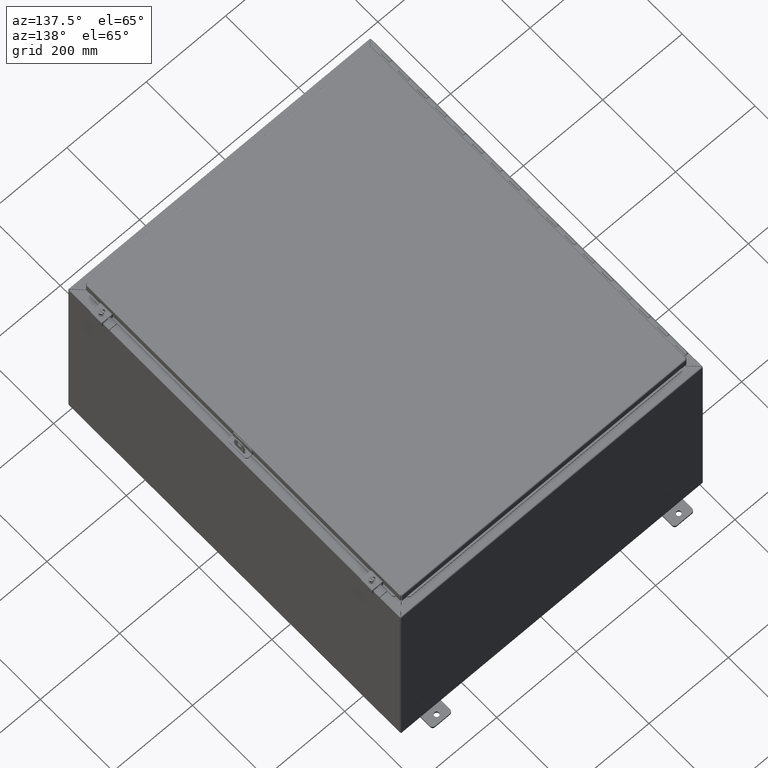
[diagram: clean part render]
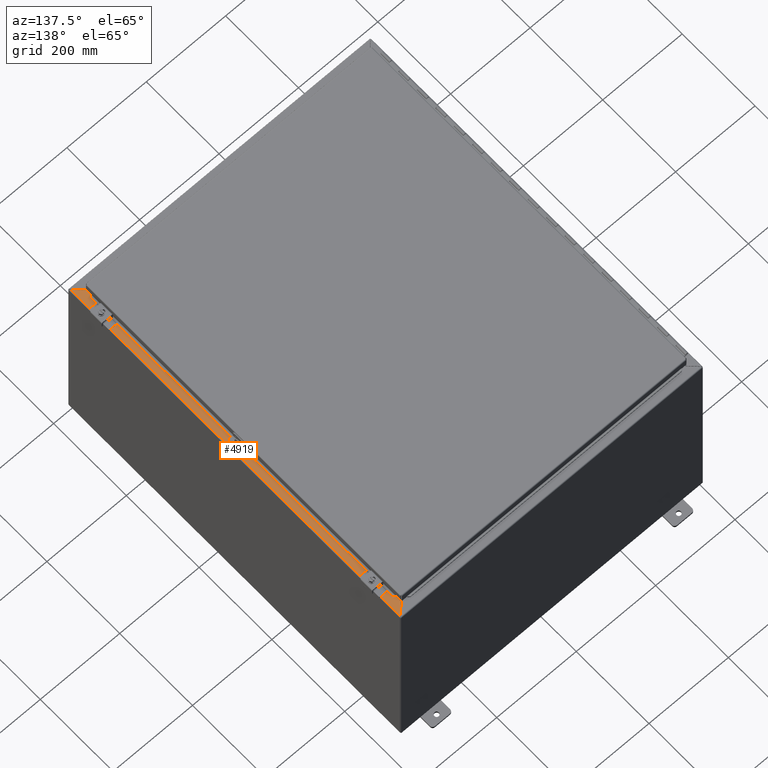
[diagram: same view with one face highlighted and labeled with its STEP entity id]
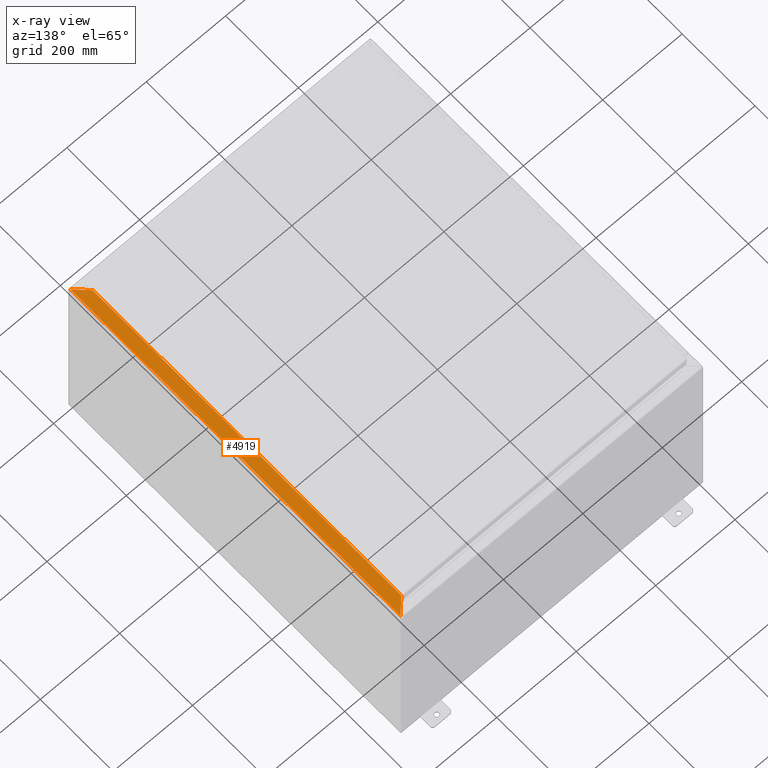
[diagram: x-ray of the same camera — body ghosted, the highlighted face saturated]
A machine part, auxiliary view. The second image highlights one B-rep face of the part: STEP entity #4919.
The next image is the same camera in x-ray: the body ghosted, the highlighted face saturated — about 0% of this face is hidden behind the body in this view.
In plain terms, the highlighted planar face has unit normal (0, -0, -1).
Its self-contained STEP definition (entity closure, byte-faithful):
#3413=CARTESIAN_POINT('',(29.894749999996684,35.793550090805233,20.0));
#3414=VERTEX_POINT('',#3413);
#3515=CARTESIAN_POINT('',(29.894749999996691,0.058449909194797,20.000000000000007));
#3516=VERTEX_POINT('',#3515);
#3567=CARTESIAN_POINT('',(28.73024999999669,34.629050090805237,19.999999999999687));
#3568=VERTEX_POINT('',#3567);
#3667=CARTESIAN_POINT('',(28.730249999996701,1.222949909194795,19.999999999999691));
#3668=VERTEX_POINT('',#3667);
#3711=CARTESIAN_POINT('',(29.894749999996677,35.79355009080524,19.999999999999986));
#3712=DIRECTION('',(-0.707106781186544,-0.707106781186551,-2.588731E-013));
#3713=VECTOR('',#3712,1.646851693383467);
#3714=LINE('',#3711,#3713);
#3715=EDGE_CURVE('',#3414,#3568,#3714,.T.);
#3727=CARTESIAN_POINT('',(28.730249999996694,1.22294990919479,19.999999999999577));
#3728=DIRECTION('',(0.707106781186546,-0.707106781186549,2.588731E-013));
#3729=VECTOR('',#3728,1.646851693383462);
#3730=LINE('',#3727,#3729);
#3731=EDGE_CURVE('',#3668,#3516,#3730,.T.);
#4789=CARTESIAN_POINT('',(28.730249999996698,34.629050090805237,19.99999999999968));
#4790=DIRECTION('',(0.0,-1.0,0.0));
#4791=VECTOR('',#4790,33.406100181610441);
#4792=LINE('',#4789,#4791);
#4793=EDGE_CURVE('',#3568,#3668,#4792,.T.);
#4865=CARTESIAN_POINT('',(29.894749999996694,0.058449909194799,20.000000000000007));
#4866=DIRECTION('',(0.0,1.0,0.0));
#4867=VECTOR('',#4866,35.735100181610441);
#4868=LINE('',#4865,#4867);
#4869=EDGE_CURVE('',#3516,#3414,#4868,.T.);
#4908=CARTESIAN_POINT('',(64.724367775263602,17.92600000000002,20.000000000012768));
#4909=DIRECTION('',(3.667201E-013,-4.706583E-016,-1.0));
#4910=DIRECTION('',(-1.0,-6.789990E-016,-3.667201E-013));
#4911=AXIS2_PLACEMENT_3D('',#4908,#4909,#4910);
#4912=PLANE('',#4911);
#4913=ORIENTED_EDGE('',*,*,#3715,.T.);
#4914=ORIENTED_EDGE('',*,*,#4793,.T.);
#4915=ORIENTED_EDGE('',*,*,#3731,.T.);
#4916=ORIENTED_EDGE('',*,*,#4869,.T.);
#4917=EDGE_LOOP('',(#4913,#4914,#4915,#4916));
#4918=FACE_OUTER_BOUND('',#4917,.T.);
#4919=ADVANCED_FACE('',(#4918),#4912,.F.);